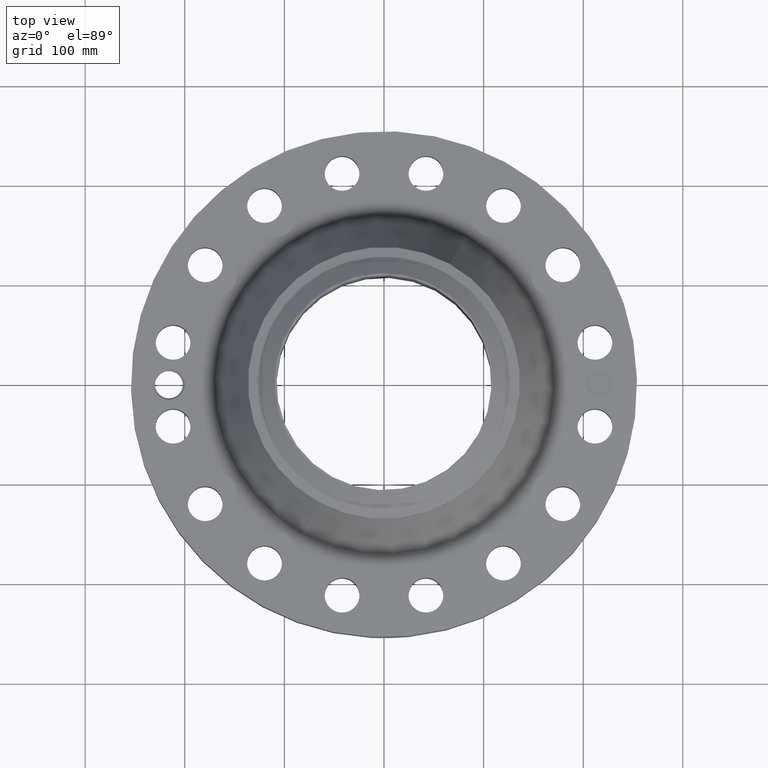
[diagram: clean part render]
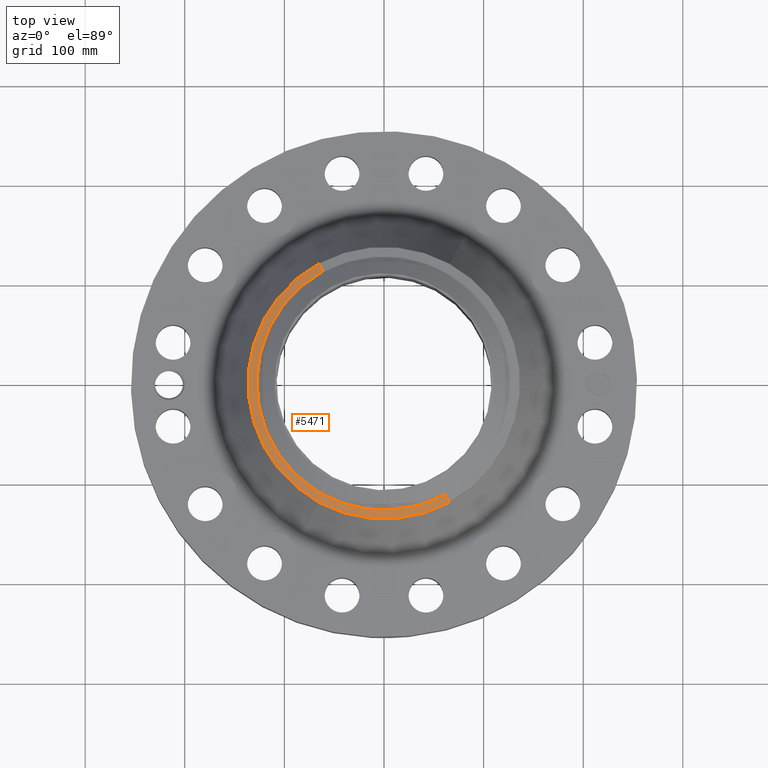
[diagram: same view with one face highlighted and labeled with its STEP entity id]
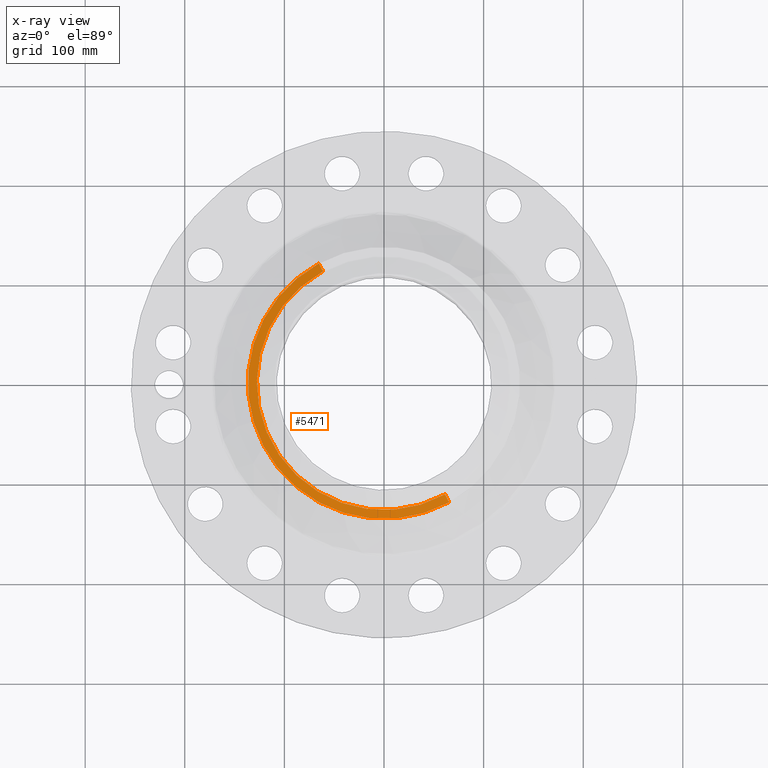
[diagram: x-ray of the same camera — body ghosted, the highlighted face saturated]
A machine part, top view. The second image highlights one B-rep face of the part: STEP entity #5471.
The next image is the same camera in x-ray: the body ghosted, the highlighted face saturated — about 0% of this face is hidden behind the body in this view.
In plain terms, the highlighted conical surface has half-angle 80 deg.
Its self-contained STEP definition (entity closure, byte-faithful):
#4014=AXIS2_PLACEMENT_3D('Circle Axis2P3D',#4012,#4013,$) ;
#4027=AXIS2_PLACEMENT_3D('Circle Axis2P3D',#4025,#4026,$) ;
#4815=AXIS2_PLACEMENT_3D('Circle Axis2P3D',#4813,#4814,$) ;
#5444=AXIS2_PLACEMENT_3D('Cone Axis2P3D',#5441,#5442,#5443) ;
#3995=CARTESIAN_POINT('Vertex',(-2.57691227001,-4.71700627018,5.66996497499)) ;
#4009=CARTESIAN_POINT('Vertex',(2.57691227001,-4.71700627018,5.66996497499)) ;
#4012=CARTESIAN_POINT('Axis2P3D Location',(0.,0.,5.66996497499)) ;
#4025=CARTESIAN_POINT('Axis2P3D Location',(0.,0.,5.66996497499)) ;
#4029=CARTESIAN_POINT('Vertex',(-2.57691227001,4.71700627018,5.66996497499)) ;
#4810=CARTESIAN_POINT('Vertex',(-2.40982950212,4.41116331506,5.73141601924)) ;
#4813=CARTESIAN_POINT('Axis2P3D Location',(0.,0.,5.73141601924)) ;
#4817=CARTESIAN_POINT('Vertex',(2.40982950212,-4.41116331506,5.73141601924)) ;
#5441=CARTESIAN_POINT('Axis2P3D Location',(0.,0.,5.73141601924)) ;
#5446=CARTESIAN_POINT('Line Origine',(-2.49337088607,4.56408479262,5.70069049712)) ;
#5451=CARTESIAN_POINT('Line Origine',(2.49337088607,-4.56408479262,5.70069049712)) ;
#4013=DIRECTION('Axis2P3D Direction',(0.,0.,-0.0393700787402)) ;
#4026=DIRECTION('Axis2P3D Direction',(0.,0.,-0.0393700787402)) ;
#4814=DIRECTION('Axis2P3D Direction',(0.,0.,0.0393700787402)) ;
#5442=DIRECTION('Axis2P3D Direction',(-0.,-0.,-0.0393700787402)) ;
#5443=DIRECTION('Axis2P3D XDirection',(0.0188750212049,-0.0345504945626,0.)) ;
#5447=DIRECTION('Vector Direction',(-0.0185882672208,0.0340255949157,-0.00683654242783)) ;
#5452=DIRECTION('Vector Direction',(0.0185882672208,-0.0340255949157,-0.00683654242783)) ;
#5448=VECTOR('Line Direction',#5447,0.0393700787402) ;
#5453=VECTOR('Line Direction',#5452,0.0393700787402) ;
#5465=ORIENTED_EDGE('',*,*,#5455,.F.) ;
#5466=ORIENTED_EDGE('',*,*,#4819,.F.) ;
#5467=ORIENTED_EDGE('',*,*,#5450,.T.) ;
#5468=ORIENTED_EDGE('',*,*,#4031,.T.) ;
#5469=ORIENTED_EDGE('',*,*,#4016,.F.) ;
#5471=ADVANCED_FACE('PartBody',(#5470),#5445,.T.) ;
#4015=CIRCLE('generated circle',#4014,5.37500000002) ;
#4028=CIRCLE('generated circle',#4027,5.37500000002) ;
#4816=CIRCLE('generated circle',#4815,5.02649380994) ;
#5445=CONICAL_SURFACE('Cone',#5444,5.02649380994,1.3962634016) ;
#4016=EDGE_CURVE('',#4010,#3996,#4015,.T.) ;
#4031=EDGE_CURVE('',#4030,#3996,#4028,.F.) ;
#4819=EDGE_CURVE('',#4811,#4818,#4816,.T.) ;
#5450=EDGE_CURVE('',#4811,#4030,#5449,.T.) ;
#5455=EDGE_CURVE('',#4818,#4010,#5454,.T.) ;
#5464=EDGE_LOOP('',(#5465,#5466,#5467,#5468,#5469)) ;
#5470=FACE_OUTER_BOUND('',#5464,.T.) ;
#5449=LINE('Line',#5446,#5448) ;
#5454=LINE('Line',#5451,#5453) ;
#3996=VERTEX_POINT('',#3995) ;
#4010=VERTEX_POINT('',#4009) ;
#4030=VERTEX_POINT('',#4029) ;
#4811=VERTEX_POINT('',#4810) ;
#4818=VERTEX_POINT('',#4817) ;